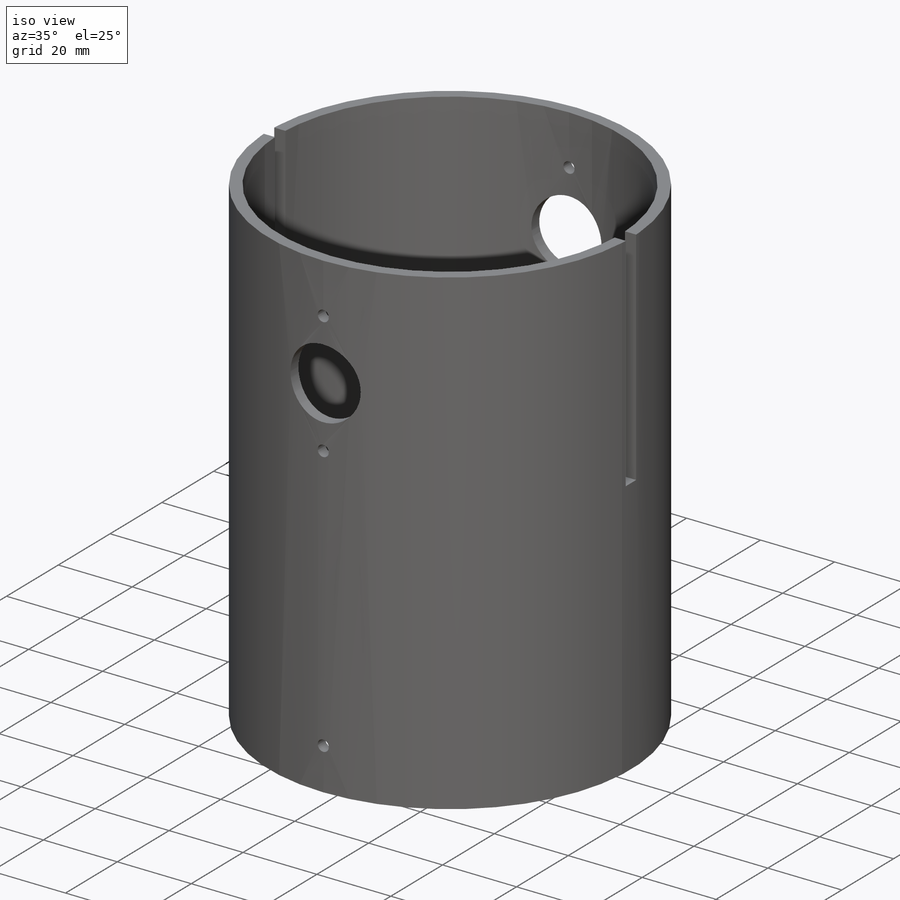
[diagram: iso view]
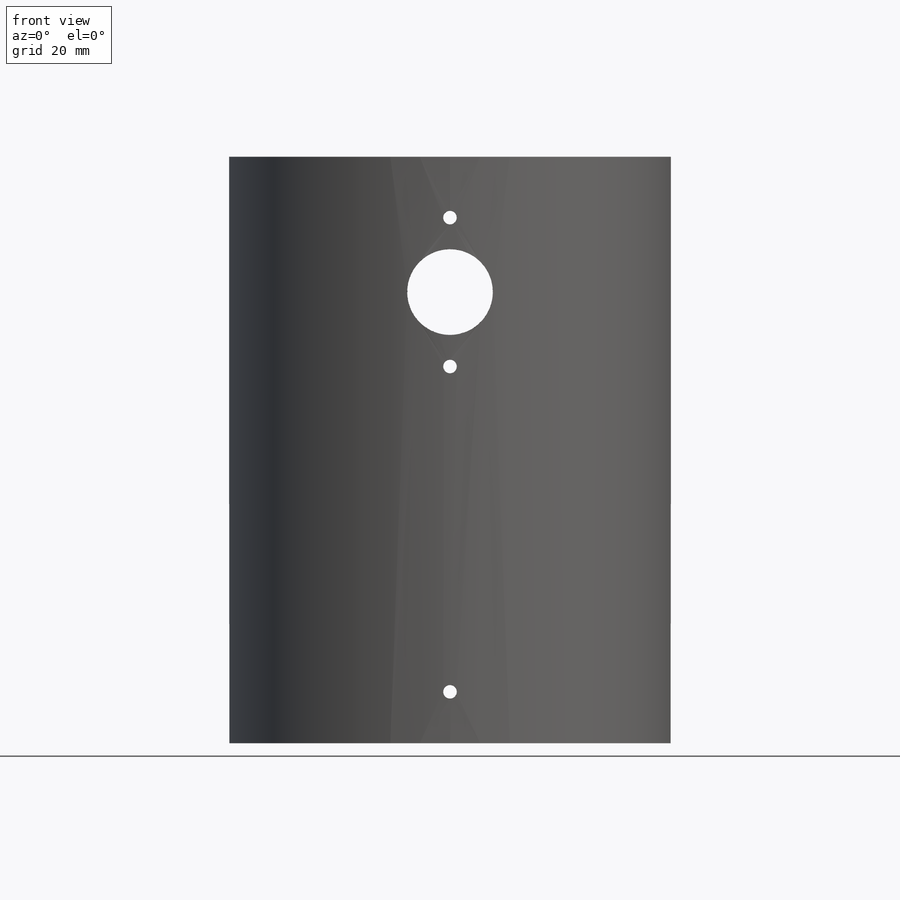
[diagram: front view]
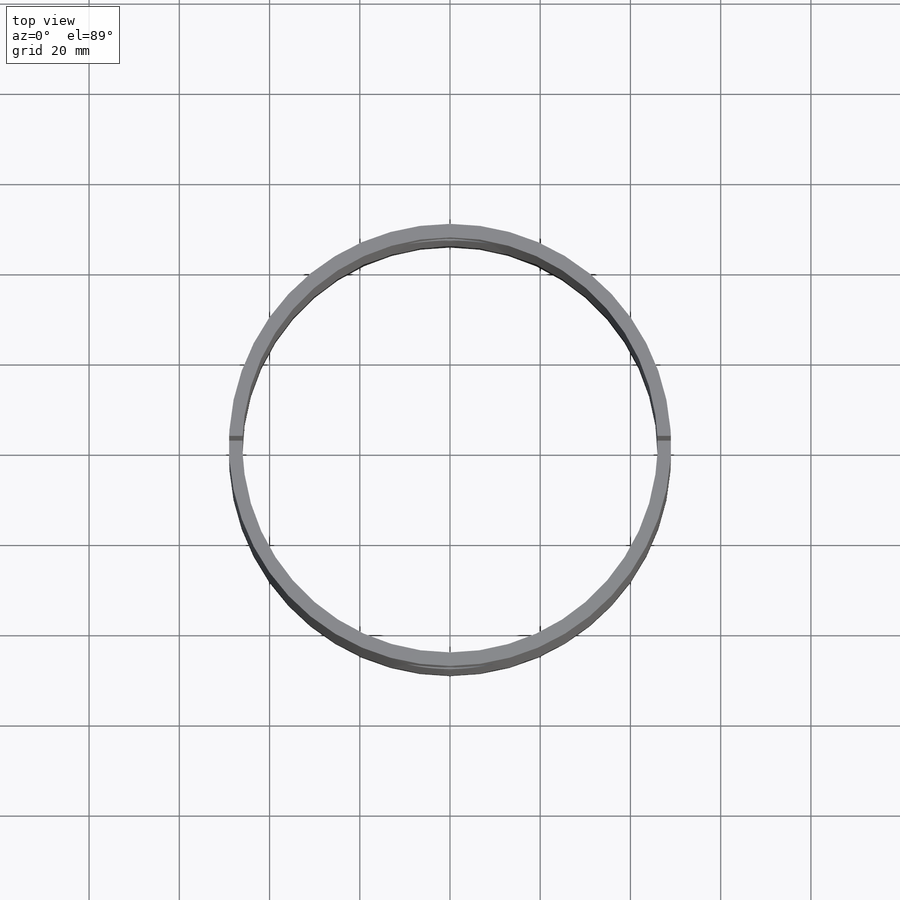
[diagram: top view]
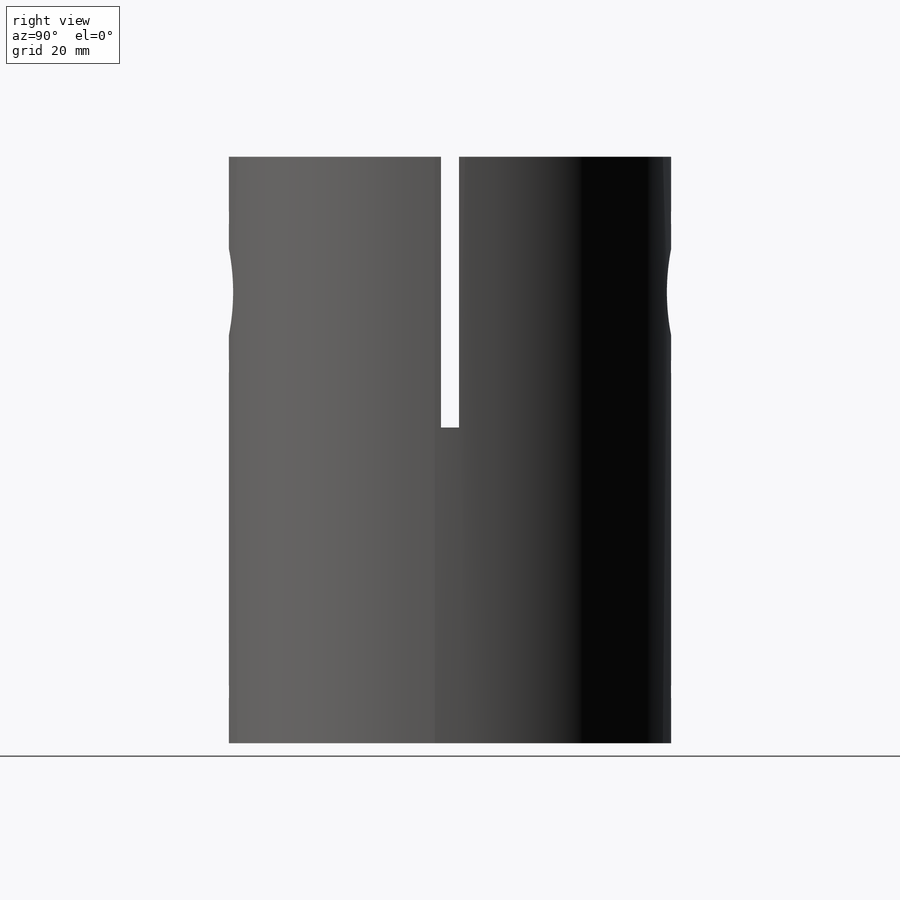
[diagram: right view]
SOLIDWORKS PART (.sldprt)
format: sldprt  version: not decoded by parser v0  size: 214,528 bytes
history: native  units: mm
features: sketch x5, cut_extrude x4, material x1, extrude x1 (+12 scaffold rows collapsed)
feature tree (23):
  scaffold x12  (default folders/planes/origin — collapsed)
  material  "Material <not specified>"
  sketch  "Sketch1"  dims[D1=92.0mm D2=98.0mm]
  extrude  "Boss-Extrude1"  Depth=130mm
  sketch  "Sketch2"  dims[c1.D2=3.0mm c1.D1=11.4mm c2.D2=~44.412077mm]
  cut_extrude  "Cut-Extrude1"  [1 undecoded]
  sketch  "Sketch3"  dims[c1.D2=19.0mm c1.D3=9.5mm c1.D1=30.0mm c2.D2=~47.296437mm]
  cut_extrude  "Cut-Extrude2"  [1 undecoded]
  sketch  "Sketch4"  dims[c1.D2=3.0mm c1.D1=16.5mm c2.D2=~13.545904mm]
  cut_extrude  "Cut-Extrude3"  [1 undecoded]
  sketch  "Sketch5"  dims[D1=60.0mm D2=2.0mm D3=4.0mm D4=2.0mm]
  cut_extrude  "Cut-Extrude4"  Depth=70mm
decode coverage: 7 of 10 modeling features carry decoded parameters
note: ~ marks probable driven/reference dimensions
note: 3 parameter values undecoded
summary: no parameter record found for 3 features
note: suppression state not decoded; provenance and decode notes live in map.json
